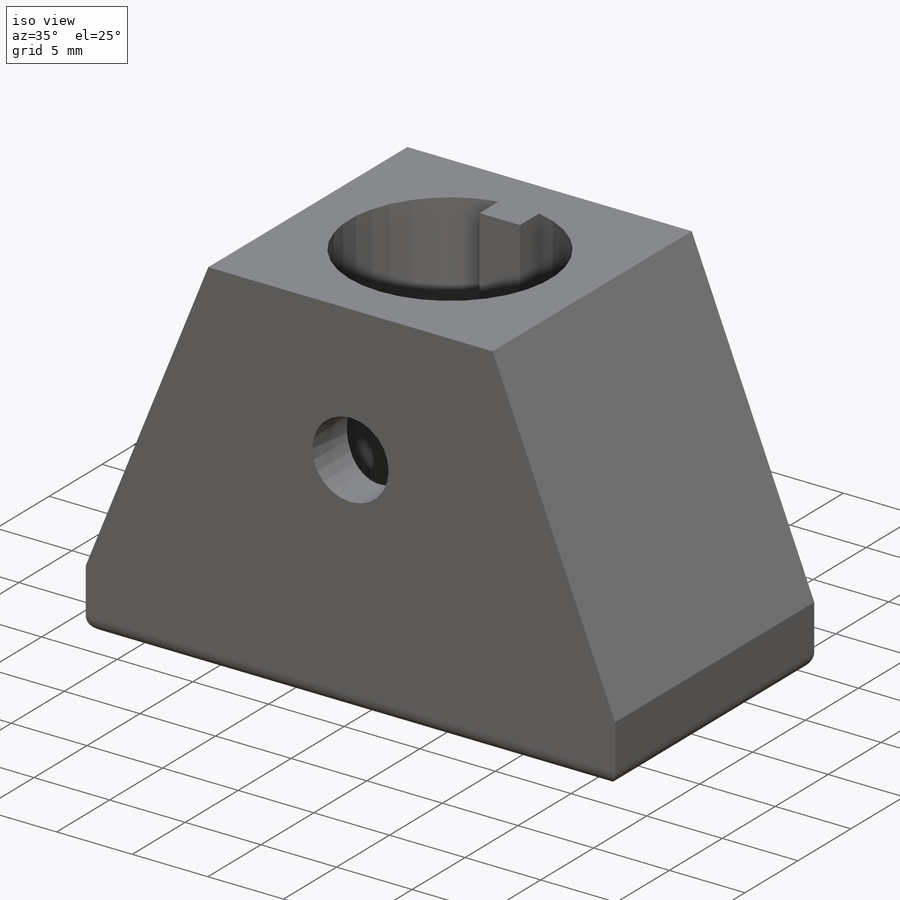
[diagram: iso view]
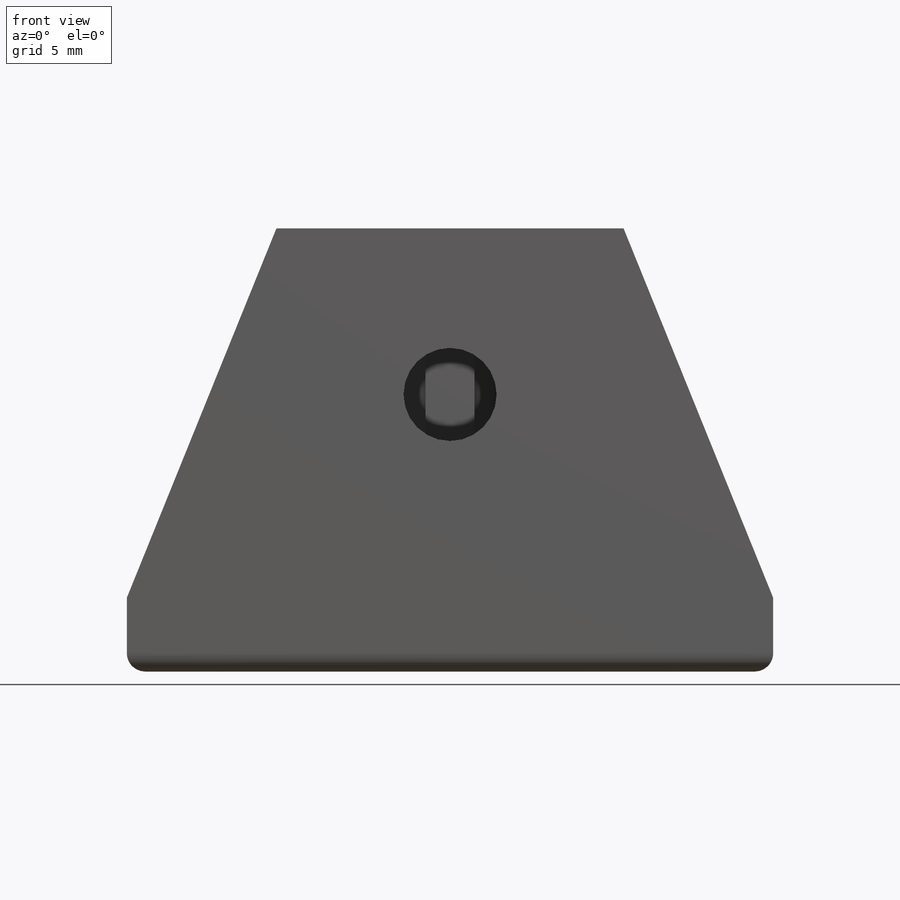
[diagram: front view]
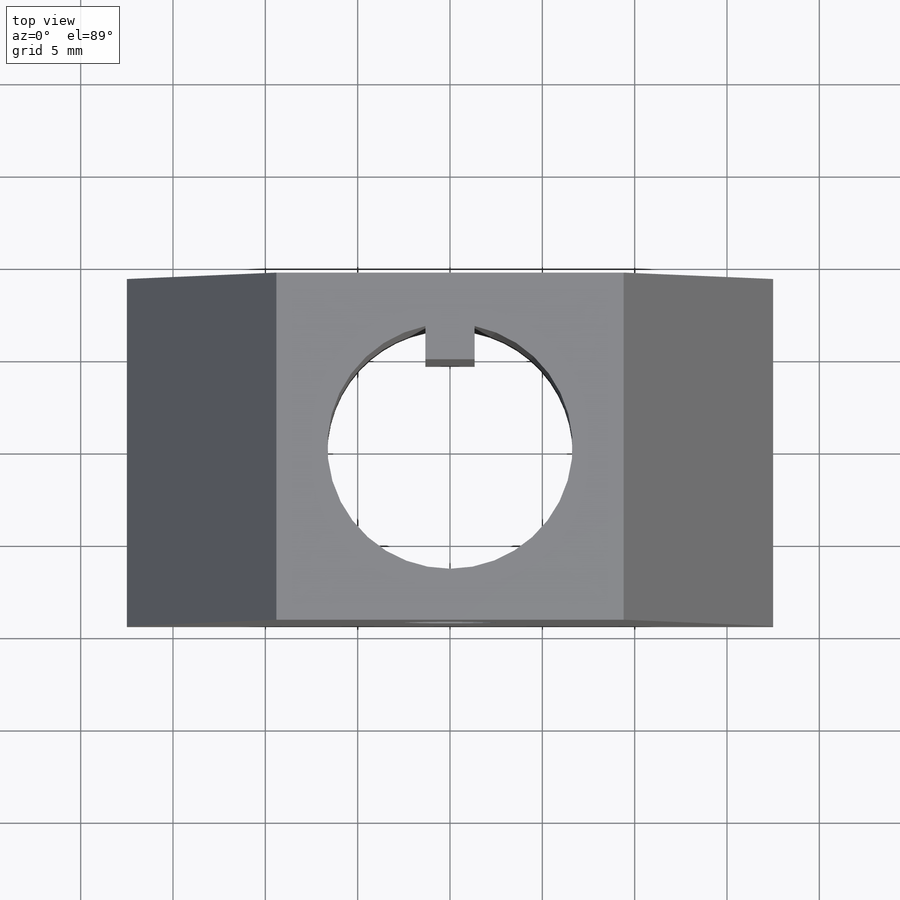
[diagram: top view]
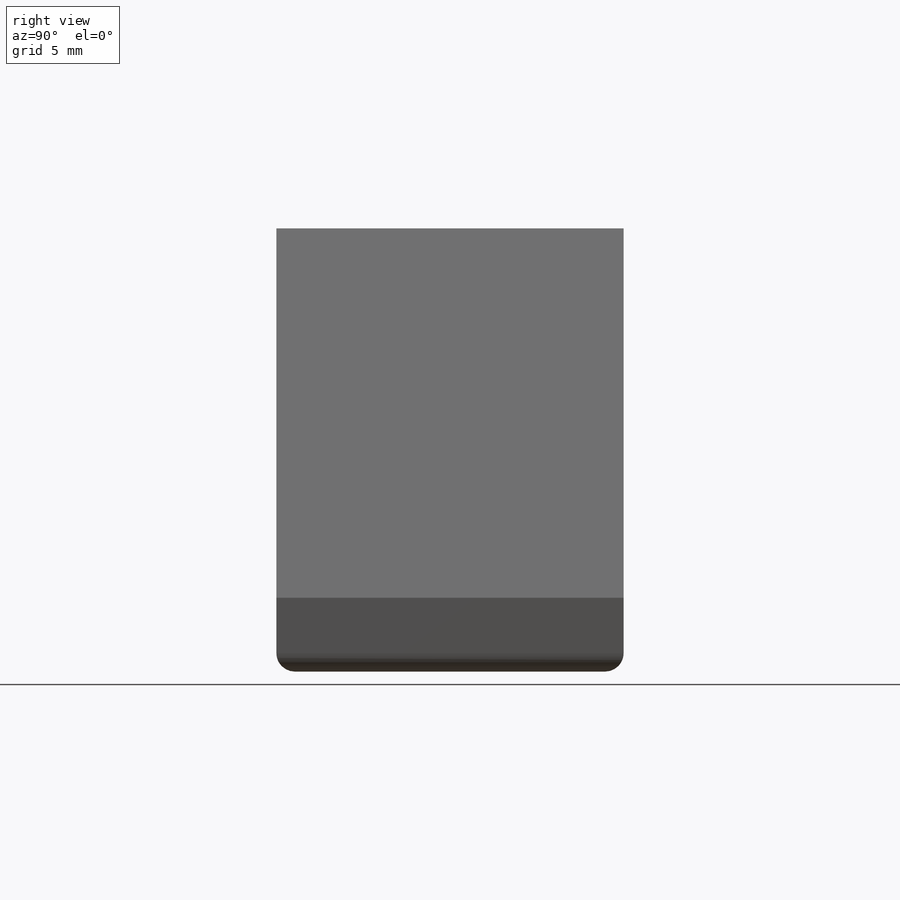
[diagram: right view]
SOLIDWORKS PART (.sldprt)
format: sldprt  version: not decoded by parser v0  size: 490,496 bytes
history: native  units: mm
features: sketch x5, extrude x3, cut_extrude x2, fillet x2, material x1 (+13 scaffold rows collapsed)
feature tree (26):
  scaffold x13  (default folders/planes/origin — collapsed)
  material  "Material <not specified>"
  sketch  "Sketch1"  dims[c1.D1=13.28mm c1.D2=19.0mm c1.D3=1.8mm c1.D4=2.67mm c1.D5=1.335mm c2.D2=18.8mm c2.D6=18.8mm]
  extrude  "Boss-Extrude1"  Depth=20mm
  sketch  "Sketch5"  dims[D1=5.04mm D2=9.0mm]
  cut_extrude  "Cut-Extrude3"  Depth=15mm
  sketch  "Sketch6"  dims[D1=18.8mm D2=35.0mm]
  extrude  "Boss-Extrude2"  Depth=4mm
  sketch  "Sketch7"
  extrude  "Boss-Extrude3"  [1 undecoded]
  fillet  "Fillet4"  Radius=1mm
  sketch  "Sketch8"
  cut_extrude  "Cut-Extrude4"  Depth=4mm
  fillet  "Fillet5"  Radius=0.5mm
decode coverage: 9 of 12 modeling features carry decoded parameters
note: 1 parameter value undecoded
note: suppression state not decoded; provenance and decode notes live in map.json
